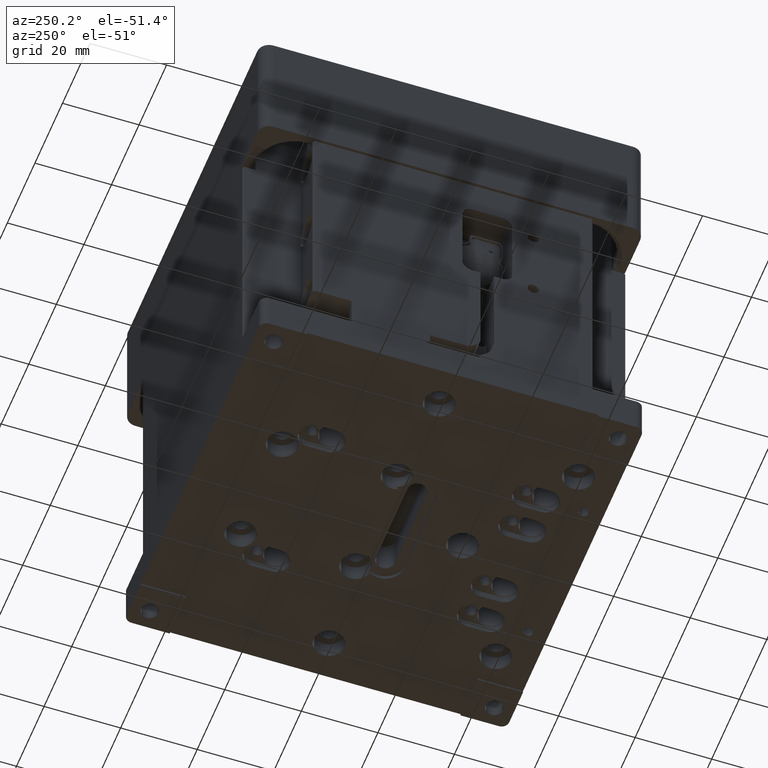
[diagram: clean part render]
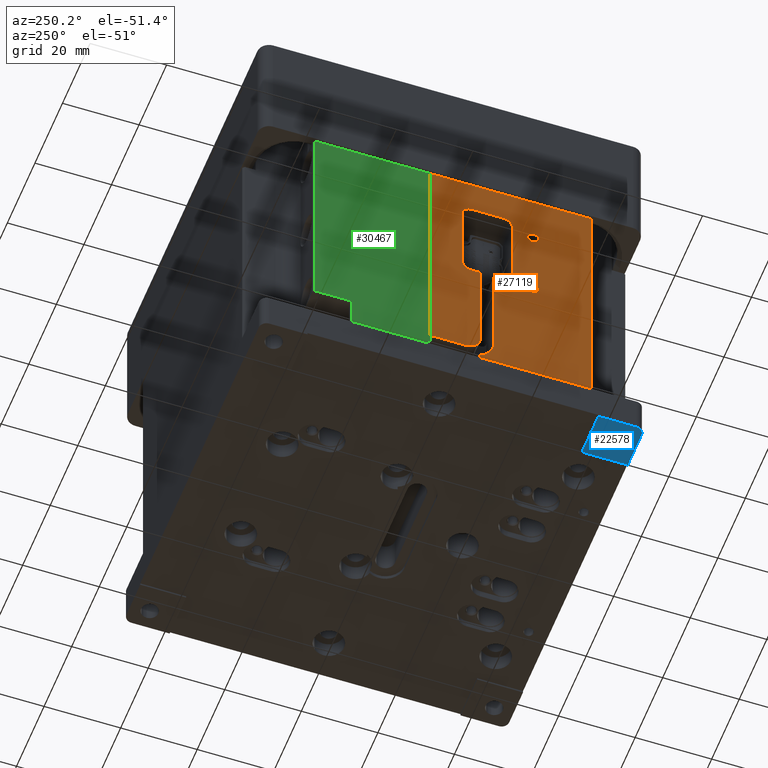
[diagram: same view with three faces highlighted in distinct colors, each labeled with its STEP entity id]
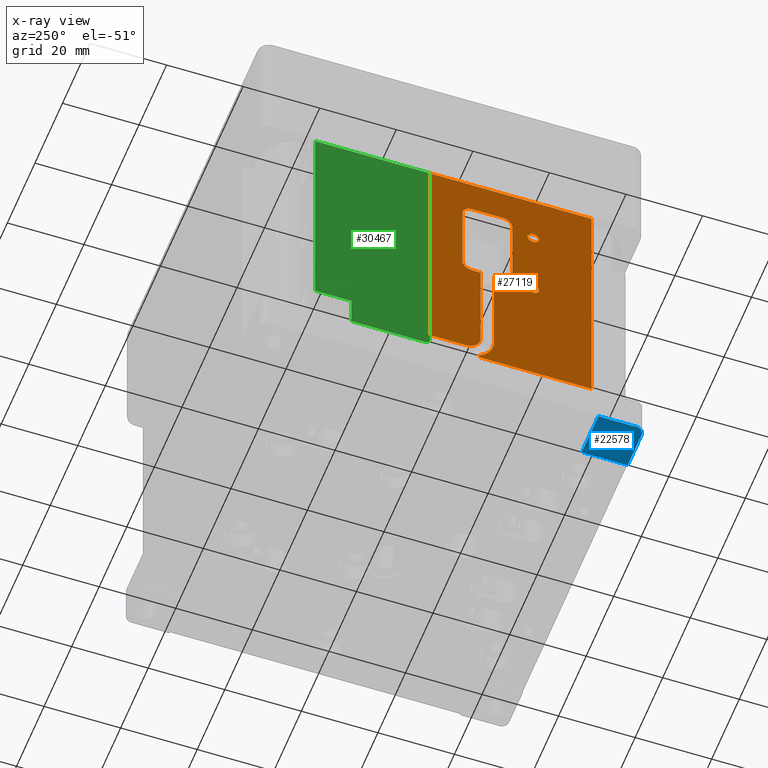
[diagram: x-ray of the same camera — body ghosted, the three highlighted faces saturated]
A machine part, auxiliary view with three faces highlighted in distinct colors.
The next image is the same camera in x-ray (body ghosted, the three faces saturated) — at least one of them is partly hidden behind the body in this view.
Their STEP definitions:

[orange] entity #27119 — the highlighted planar face has unit normal (-1, -0, 0).
#494 = DIRECTION ( 'NONE',  ( 0.000000000000000000, 1.000000000000000000, 0.000000000000000000 ) ) ;
#654 = CIRCLE ( 'NONE', #9459, 2.500000000000000444 ) ;
#704 = VERTEX_POINT ( 'NONE', #37859 ) ;
#715 = CARTESIAN_POINT ( 'NONE',  ( -49.99999999999999289, -5.000000000000000888, 55.00000000000000711 ) ) ;
#834 = EDGE_CURVE ( 'NONE', #30168, #25100, #41139, .T. ) ;
#919 = EDGE_LOOP ( 'NONE', ( #16279 ) ) ;
#1407 = CIRCLE ( 'NONE', #25077, 0.4999999999999995559 ) ;
#1605 = DIRECTION ( 'NONE',  ( -1.387778780781445922E-16, 1.000000000000000000, -0.000000000000000000 ) ) ;
#1789 = PLANE ( 'NONE',  #15205 ) ;
#1986 = CARTESIAN_POINT ( 'NONE',  ( -49.99999999999999289, -13.00000000000000000, 55.00000000000000000 ) ) ;
#1997 = FACE_BOUND ( 'NONE', #30491, .T. ) ;
#2091 = DIRECTION ( 'NONE',  ( 0.000000000000000000, -1.000000000000000000, 0.000000000000000000 ) ) ;
#2781 = CARTESIAN_POINT ( 'NONE',  ( -49.99999999999999289, -5.000000000000000000, 33.50000000000000000 ) ) ;
#2803 = EDGE_CURVE ( 'NONE', #26255, #25157, #35205, .T. ) ;
#3000 = AXIS2_PLACEMENT_3D ( 'NONE', #25051, #5981, #38009 ) ;
#3164 = EDGE_CURVE ( 'NONE', #16561, #3540, #40598, .T. ) ;
#3229 = CARTESIAN_POINT ( 'NONE',  ( -50.00000000000000000, 50.00000000000000000, 57.50000000000000000 ) ) ;
#3245 = VECTOR ( 'NONE', #40674, 1000.000000000000000 ) ;
#3540 = VERTEX_POINT ( 'NONE', #37602 ) ;
#3710 = LINE ( 'NONE', #6674, #22268 ) ;
#3747 = EDGE_CURVE ( 'NONE', #17405, #32046, #654, .T. ) ;
#3778 = DIRECTION ( 'NONE',  ( -1.387778780781445922E-16, 1.000000000000000000, -0.000000000000000000 ) ) ;
#3800 = LINE ( 'NONE', #35806, #32439 ) ;
#4286 = DIRECTION ( 'NONE',  ( 0.000000000000000000, -1.000000000000000000, 0.000000000000000000 ) ) ;
#4526 = DIRECTION ( 'NONE',  ( 0.000000000000000000, 0.000000000000000000, 1.000000000000000000 ) ) ;
#5067 = EDGE_CURVE ( 'NONE', #9309, #37967, #23037, .T. ) ;
#5263 = LINE ( 'NONE', #27740, #3245 ) ;
#5673 = CARTESIAN_POINT ( 'NONE',  ( -49.99999999999999289, -21.00000000000000355, 54.50000000000000000 ) ) ;
#5693 = ORIENTED_EDGE ( 'NONE', *, *, #24888, .T. ) ;
#5981 = DIRECTION ( 'NONE',  ( -1.000000000000000000, -1.416100796715760863E-16, -0.000000000000000000 ) ) ;
#6165 = DIRECTION ( 'NONE',  ( -0.000000000000000000, -0.000000000000000000, -1.000000000000000000 ) ) ;
#6372 = LINE ( 'NONE', #39015, #41482 ) ;
#6397 = CARTESIAN_POINT ( 'NONE',  ( -49.99999999999998579, -36.20000000000000284, 67.00000000000000000 ) ) ;
#6613 = DIRECTION ( 'NONE',  ( 1.387778780781445922E-16, -1.000000000000000000, 0.000000000000000000 ) ) ;
#6674 = CARTESIAN_POINT ( 'NONE',  ( -49.99999999999999289, -15.50000000000000000, -9.500000000000000000 ) ) ;
#7527 = DIRECTION ( 'NONE',  ( 0.000000000000000000, 0.000000000000000000, 1.000000000000000000 ) ) ;
#7560 = CARTESIAN_POINT ( 'NONE',  ( -49.99999999999999289, -7.250000000000006217, -9.500000000000000000 ) ) ;
#7655 = ORIENTED_EDGE ( 'NONE', *, *, #3747, .T. ) ;
#8023 = CARTESIAN_POINT ( 'NONE',  ( -49.99999999999999289, -5.000000000000000888, 36.00000000000001421 ) ) ;
#8158 = EDGE_CURVE ( 'NONE', #704, #11924, #6372, .T. ) ;
#8454 = ORIENTED_EDGE ( 'NONE', *, *, #37282, .T. ) ;
#9196 = ORIENTED_EDGE ( 'NONE', *, *, #26476, .T. ) ;
#9309 = VERTEX_POINT ( 'NONE', #23364 ) ;
#9459 = AXIS2_PLACEMENT_3D ( 'NONE', #8023, #40681, #2091 ) ;
#9811 = CARTESIAN_POINT ( 'NONE',  ( -50.00000000000000711, 5.999999999999998224, 67.00000000000000000 ) ) ;
#10066 = VERTEX_POINT ( 'NONE', #39345 ) ;
#10714 = DIRECTION ( 'NONE',  ( 1.000000000000000000, 1.387778780781445676E-16, 0.000000000000000000 ) ) ;
#10967 = EDGE_CURVE ( 'NONE', #11924, #35436, #26056, .T. ) ;
#11161 = DIRECTION ( 'NONE',  ( 0.000000000000000000, 0.000000000000000000, 1.000000000000000000 ) ) ;
#11340 = VERTEX_POINT ( 'NONE', #30414 ) ;
#11343 = LINE ( 'NONE', #30651, #32681 ) ;
#11553 = DIRECTION ( 'NONE',  ( 1.000000000000000000, 0.000000000000000000, 0.000000000000000000 ) ) ;
#11924 = VERTEX_POINT ( 'NONE', #40650 ) ;
#12579 = CARTESIAN_POINT ( 'NONE',  ( -49.99999999999999289, -5.000000000000001776, 57.50000000000000711 ) ) ;
#13275 = CIRCLE ( 'NONE', #40379, 1.499999999999994449 ) ;
#13553 = EDGE_CURVE ( 'NONE', #11340, #17405, #36630, .T. ) ;
#14241 = CARTESIAN_POINT ( 'NONE',  ( -49.99999999999999289, -2.500000000000001332, 36.00000000000001421 ) ) ;
#14319 = ORIENTED_EDGE ( 'NONE', *, *, #21723, .F. ) ;
#14334 = EDGE_LOOP ( 'NONE', ( #28988, #14319, #38336, #26573, #5693, #21227, #35214, #9196, #40298, #22265, #7655, #17304, #22130, #8454, #33625, #24630, #15781, #41034, #20164 ) ) ;
#14437 = EDGE_CURVE ( 'NONE', #25157, #17584, #16086, .T. ) ;
#14585 = CARTESIAN_POINT ( 'NONE',  ( -50.00000000000000000, 50.00000000000000000, 33.50000000000000000 ) ) ;
#14587 = VERTEX_POINT ( 'NONE', #5673 ) ;
#14765 = CARTESIAN_POINT ( 'NONE',  ( -49.99999999999999289, -21.00000000000000355, 53.00000000000000711 ) ) ;
#14810 = ORIENTED_EDGE ( 'NONE', *, *, #41743, .T. ) ;
#14843 = VECTOR ( 'NONE', #6613, 1000.000000000000000 ) ;
#15205 = AXIS2_PLACEMENT_3D ( 'NONE', #24864, #21264, #37412 ) ;
#15643 = EDGE_CURVE ( 'NONE', #27331, #26629, #5263, .T. ) ;
#15781 = ORIENTED_EDGE ( 'NONE', *, *, #3164, .T. ) ;
#15835 = CIRCLE ( 'NONE', #3000, 4.250000000000000000 ) ;
#15954 = LINE ( 'NONE', #3229, #14843 ) ;
#16086 = LINE ( 'NONE', #35788, #26203 ) ;
#16279 = ORIENTED_EDGE ( 'NONE', *, *, #37130, .T. ) ;
#16561 = VERTEX_POINT ( 'NONE', #41184 ) ;
#17031 = CARTESIAN_POINT ( 'NONE',  ( -49.99999999999999289, -7.250000000000007994, 7.500000000000001776 ) ) ;
#17191 = VECTOR ( 'NONE', #4526, 1000.000000000000000 ) ;
#17304 = ORIENTED_EDGE ( 'NONE', *, *, #26421, .T. ) ;
#17405 = VERTEX_POINT ( 'NONE', #2781 ) ;
#17584 = VERTEX_POINT ( 'NONE', #20330 ) ;
#17728 = CARTESIAN_POINT ( 'NONE',  ( -49.99999999999999289, -13.00000000000000000, 36.00000000000001421 ) ) ;
#17966 = AXIS2_PLACEMENT_3D ( 'NONE', #30684, #34073, #37036 ) ;
#18899 = AXIS2_PLACEMENT_3D ( 'NONE', #14765, #34068, #40209 ) ;
#19466 = DIRECTION ( 'NONE',  ( 1.387778780781445922E-16, -1.000000000000000000, 0.000000000000000000 ) ) ;
#19598 = DIRECTION ( 'NONE',  ( -0.000000000000000000, -0.000000000000000000, -1.000000000000000000 ) ) ;
#19796 = DIRECTION ( 'NONE',  ( 1.000000000000000000, 1.387778780781445676E-16, 0.000000000000000000 ) ) ;
#19952 = DIRECTION ( 'NONE',  ( 1.000000000000000000, 1.416100796715760863E-16, 0.000000000000000000 ) ) ;
#20164 = ORIENTED_EDGE ( 'NONE', *, *, #8158, .T. ) ;
#20330 = CARTESIAN_POINT ( 'NONE',  ( -49.99999999999999289, -3.000000000000008438, 3.250000000000000444 ) ) ;
#20400 = CARTESIAN_POINT ( 'NONE',  ( -49.99999999999999289, -2.500000000000002220, -9.500000000000000000 ) ) ;
#20833 = AXIS2_PLACEMENT_3D ( 'NONE', #715, #19796, #494 ) ;
#21227 = ORIENTED_EDGE ( 'NONE', *, *, #2803, .T. ) ;
#21264 = DIRECTION ( 'NONE',  ( -1.000000000000000000, -1.387778780781445922E-16, 0.000000000000000000 ) ) ;
#21714 = AXIS2_PLACEMENT_3D ( 'NONE', #1986, #21877, #28668 ) ;
#21723 = EDGE_CURVE ( 'NONE', #41635, #35436, #1407, .T. ) ;
#21877 = DIRECTION ( 'NONE',  ( 1.000000000000000000, 1.387778780781445676E-16, -0.000000000000000000 ) ) ;
#22130 = ORIENTED_EDGE ( 'NONE', *, *, #834, .T. ) ;
#22265 = ORIENTED_EDGE ( 'NONE', *, *, #13553, .T. ) ;
#22268 = VECTOR ( 'NONE', #19598, 1000.000000000000000 ) ;
#22866 = CARTESIAN_POINT ( 'NONE',  ( -50.00000000000000000, 5.999999999999997335, 93.50000000000000000 ) ) ;
#23037 = CIRCLE ( 'NONE', #21714, 2.500000000000000444 ) ;
#23364 = CARTESIAN_POINT ( 'NONE',  ( -49.99999999999999289, -12.99999999999999822, 57.50000000000000000 ) ) ;
#23625 = CARTESIAN_POINT ( 'NONE',  ( -49.99999999999999289, -21.00000000000000355, 33.00000000000000000 ) ) ;
#24630 = ORIENTED_EDGE ( 'NONE', *, *, #38303, .T. ) ;
#24764 = CARTESIAN_POINT ( 'NONE',  ( -49.99999999999999289, -15.50000000000000000, 55.00000000000000000 ) ) ;
#24864 = CARTESIAN_POINT ( 'NONE',  ( -50.00000000000000000, 50.00000000000000000, -9.500000000000000000 ) ) ;
#24888 = EDGE_CURVE ( 'NONE', #26629, #26255, #11343, .T. ) ;
#25051 = CARTESIAN_POINT ( 'NONE',  ( -49.99999999999999289, -3.000000000000008438, 7.500000000000001776 ) ) ;
#25077 = AXIS2_PLACEMENT_3D ( 'NONE', #32127, #19952, #4286 ) ;
#25100 = VERTEX_POINT ( 'NONE', #12579 ) ;
#25157 = VERTEX_POINT ( 'NONE', #35273 ) ;
#26056 = CIRCLE ( 'NONE', #17966, 7.750000000000000000 ) ;
#26203 = VECTOR ( 'NONE', #19466, 1000.000000000000000 ) ;
#26255 = VERTEX_POINT ( 'NONE', #9811 ) ;
#26373 = VERTEX_POINT ( 'NONE', #17031 ) ;
#26421 = EDGE_CURVE ( 'NONE', #32046, #30168, #36959, .T. ) ;
#26476 = EDGE_CURVE ( 'NONE', #17584, #26373, #15835, .T. ) ;
#26573 = ORIENTED_EDGE ( 'NONE', *, *, #15643, .T. ) ;
#26629 = VERTEX_POINT ( 'NONE', #6397 ) ;
#27119 = ADVANCED_FACE ( 'NONE', ( #28277, #31261, #1997 ), #1789, .T. ) ;
#27331 = VERTEX_POINT ( 'NONE', #28033 ) ;
#27523 = DIRECTION ( 'NONE',  ( -1.387778780781445922E-16, 1.000000000000000000, -0.000000000000000000 ) ) ;
#27740 = CARTESIAN_POINT ( 'NONE',  ( -49.99999999999998579, -36.19999999999999574, -9.500000000000000000 ) ) ;
#27873 = CARTESIAN_POINT ( 'NONE',  ( -49.99999999999998579, -7.101452462831541190, 0.9242424242424239766 ) ) ;
#28033 = CARTESIAN_POINT ( 'NONE',  ( -49.99999999999998579, -36.20000000000000284, 0.000000000000000000 ) ) ;
#28277 = FACE_OUTER_BOUND ( 'NONE', #14334, .T. ) ;
#28668 = DIRECTION ( 'NONE',  ( 0.000000000000000000, -1.000000000000000000, 0.000000000000000000 ) ) ;
#28965 = EDGE_CURVE ( 'NONE', #3540, #704, #35994, .T. ) ;
#28988 = ORIENTED_EDGE ( 'NONE', *, *, #10967, .T. ) ;
#29745 = AXIS2_PLACEMENT_3D ( 'NONE', #17728, #10714, #33415 ) ;
#30168 = VERTEX_POINT ( 'NONE', #38701 ) ;
#30414 = CARTESIAN_POINT ( 'NONE',  ( -49.99999999999999289, -7.250000000000006217, 33.50000000000000000 ) ) ;
#30491 = EDGE_LOOP ( 'NONE', ( #14810 ) ) ;
#30651 = CARTESIAN_POINT ( 'NONE',  ( -50.00000000000000000, 50.00000000000000000, 67.00000000000000000 ) ) ;
#30684 = CARTESIAN_POINT ( 'NONE',  ( -49.99999999999999289, -3.000000000000006217, 7.500000000000000000 ) ) ;
#30890 = LINE ( 'NONE', #7560, #33730 ) ;
#31261 = FACE_BOUND ( 'NONE', #919, .T. ) ;
#32031 = DIRECTION ( 'NONE',  ( 0.000000000000000000, -0.000000000000000000, -1.000000000000000000 ) ) ;
#32046 = VERTEX_POINT ( 'NONE', #14241 ) ;
#32106 = VECTOR ( 'NONE', #3778, 1000.000000000000000 ) ;
#32127 = CARTESIAN_POINT ( 'NONE',  ( -49.99999999999998579, -7.366062299143253611, 0.5000000000000004441 ) ) ;
#32439 = VECTOR ( 'NONE', #39414, 1000.000000000000000 ) ;
#32681 = VECTOR ( 'NONE', #1605, 1000.000000000000000 ) ;
#32818 = CARTESIAN_POINT ( 'NONE',  ( -50.00000000000000000, 50.00000000000000000, 33.50000000000000000 ) ) ;
#33415 = DIRECTION ( 'NONE',  ( 0.000000000000000000, 1.000000000000000000, 0.000000000000000000 ) ) ;
#33625 = ORIENTED_EDGE ( 'NONE', *, *, #5067, .T. ) ;
#33730 = VECTOR ( 'NONE', #11161, 1000.000000000000000 ) ;
#34068 = DIRECTION ( 'NONE',  ( 1.000000000000000000, 0.000000000000000000, 0.000000000000000000 ) ) ;
#34073 = DIRECTION ( 'NONE',  ( 1.000000000000000000, 1.416100796715760863E-16, 0.000000000000000000 ) ) ;
#34979 = EDGE_CURVE ( 'NONE', #26373, #11340, #30890, .T. ) ;
#35205 = LINE ( 'NONE', #22866, #36525 ) ;
#35214 = ORIENTED_EDGE ( 'NONE', *, *, #14437, .T. ) ;
#35273 = CARTESIAN_POINT ( 'NONE',  ( -50.00000000000000711, 5.999999999999998224, 3.250000000000002665 ) ) ;
#35436 = VERTEX_POINT ( 'NONE', #27873 ) ;
#35788 = CARTESIAN_POINT ( 'NONE',  ( -50.00000000000000000, 50.00000000000000000, 3.250000000000001332 ) ) ;
#35806 = CARTESIAN_POINT ( 'NONE',  ( -49.99999999999998579, 0.000000000000000000, 0.000000000000000000 ) ) ;
#35824 = CIRCLE ( 'NONE', #18899, 1.499999999999994449 ) ;
#35994 = LINE ( 'NONE', #32818, #32106 ) ;
#36525 = VECTOR ( 'NONE', #32031, 1000.000000000000000 ) ;
#36630 = LINE ( 'NONE', #14585, #39608 ) ;
#36842 = EDGE_CURVE ( 'NONE', #27331, #41635, #3800, .T. ) ;
#36959 = LINE ( 'NONE', #20400, #17191 ) ;
#37036 = DIRECTION ( 'NONE',  ( 0.000000000000000000, -1.000000000000000000, 0.000000000000000000 ) ) ;
#37130 = EDGE_CURVE ( 'NONE', #14587, #14587, #35824, .T. ) ;
#37282 = EDGE_CURVE ( 'NONE', #25100, #9309, #15954, .T. ) ;
#37412 = DIRECTION ( 'NONE',  ( 1.387778780781445922E-16, -1.000000000000000000, 0.000000000000000000 ) ) ;
#37602 = CARTESIAN_POINT ( 'NONE',  ( -49.99999999999999289, -12.99999999999999822, 33.50000000000000000 ) ) ;
#37859 = CARTESIAN_POINT ( 'NONE',  ( -49.99999999999999289, -10.75000000000000178, 33.50000000000000000 ) ) ;
#37967 = VERTEX_POINT ( 'NONE', #24764 ) ;
#38009 = DIRECTION ( 'NONE',  ( 0.000000000000000000, -1.000000000000000000, 0.000000000000000000 ) ) ;
#38303 = EDGE_CURVE ( 'NONE', #37967, #16561, #3710, .T. ) ;
#38336 = ORIENTED_EDGE ( 'NONE', *, *, #36842, .F. ) ;
#38701 = CARTESIAN_POINT ( 'NONE',  ( -49.99999999999999289, -2.500000000000001332, 55.00000000000000711 ) ) ;
#39015 = CARTESIAN_POINT ( 'NONE',  ( -49.99999999999999289, -10.75000000000000178, -9.500000000000000000 ) ) ;
#39126 = CARTESIAN_POINT ( 'NONE',  ( -49.99999999999998579, -7.366062299143246506, 0.000000000000000000 ) ) ;
#39345 = CARTESIAN_POINT ( 'NONE',  ( -49.99999999999999289, -21.00000000000000355, 34.49999999999999289 ) ) ;
#39414 = DIRECTION ( 'NONE',  ( 0.000000000000000000, 1.000000000000000000, 0.000000000000000000 ) ) ;
#39608 = VECTOR ( 'NONE', #27523, 1000.000000000000000 ) ;
#40209 = DIRECTION ( 'NONE',  ( 0.000000000000000000, 0.000000000000000000, 1.000000000000000000 ) ) ;
#40298 = ORIENTED_EDGE ( 'NONE', *, *, #34979, .T. ) ;
#40379 = AXIS2_PLACEMENT_3D ( 'NONE', #23625, #11553, #7527 ) ;
#40598 = CIRCLE ( 'NONE', #29745, 2.500000000000000444 ) ;
#40650 = CARTESIAN_POINT ( 'NONE',  ( -49.99999999999999289, -10.75000000000000355, 7.500000000000001776 ) ) ;
#40674 = DIRECTION ( 'NONE',  ( 0.000000000000000000, 0.000000000000000000, 1.000000000000000000 ) ) ;
#40681 = DIRECTION ( 'NONE',  ( 1.000000000000000000, 1.387778780781445676E-16, -0.000000000000000000 ) ) ;
#41034 = ORIENTED_EDGE ( 'NONE', *, *, #28965, .T. ) ;
#41139 = CIRCLE ( 'NONE', #20833, 2.500000000000000000 ) ;
#41184 = CARTESIAN_POINT ( 'NONE',  ( -49.99999999999999289, -15.50000000000000000, 36.00000000000001421 ) ) ;
#41482 = VECTOR ( 'NONE', #6165, 1000.000000000000000 ) ;
#41635 = VERTEX_POINT ( 'NONE', #39126 ) ;
#41743 = EDGE_CURVE ( 'NONE', #10066, #10066, #13275, .T. ) ;

[blue] entity #22578 — the highlighted planar face has unit normal (0, 0, -1).
#791 = ORIENTED_EDGE ( 'NONE', *, *, #36201, .F. ) ;
#1370 = CARTESIAN_POINT ( 'NONE',  ( -37.99999999999996447, -49.99999999999998579, -10.00000000000000000 ) ) ;
#1379 = DIRECTION ( 'NONE',  ( -0.000000000000000000, -0.000000000000000000, 1.000000000000000000 ) ) ;
#1659 = VERTEX_POINT ( 'NONE', #8430 ) ;
#2727 = CARTESIAN_POINT ( 'NONE',  ( -49.99999999999997868, -38.00000000000000711, -10.00000000000000000 ) ) ;
#3475 = CARTESIAN_POINT ( 'NONE',  ( 0.000000000000000000, -38.00000000000000711, -10.00000000000000000 ) ) ;
#4190 = VERTEX_POINT ( 'NONE', #32737 ) ;
#6236 = VECTOR ( 'NONE', #13189, 1000.000000000000000 ) ;
#6421 = LINE ( 'NONE', #19343, #6236 ) ;
#7647 = VECTOR ( 'NONE', #29040, 1000.000000000000000 ) ;
#8071 = EDGE_CURVE ( 'NONE', #40539, #38413, #41570, .T. ) ;
#8430 = CARTESIAN_POINT ( 'NONE',  ( -42.74999999999998579, -44.99999999999999289, -9.999999999999994671 ) ) ;
#9028 = DIRECTION ( 'NONE',  ( -1.000000000000000000, 0.000000000000000000, -0.000000000000000000 ) ) ;
#9097 = EDGE_CURVE ( 'NONE', #19886, #40539, #25507, .T. ) ;
#12312 = EDGE_LOOP ( 'NONE', ( #41037 ) ) ;
#13189 = DIRECTION ( 'NONE',  ( 1.387778780781445922E-16, -1.000000000000000000, 0.000000000000000000 ) ) ;
#13669 = DIRECTION ( 'NONE',  ( 0.000000000000000000, 0.000000000000000000, 1.000000000000000000 ) ) ;
#15478 = ORIENTED_EDGE ( 'NONE', *, *, #39504, .F. ) ;
#19343 = CARTESIAN_POINT ( 'NONE',  ( -50.00000000000000000, 50.00000000000000000, -10.00000000000000000 ) ) ;
#19511 = AXIS2_PLACEMENT_3D ( 'NONE', #20017, #13669, #29566 ) ;
#19886 = VERTEX_POINT ( 'NONE', #2727 ) ;
#20017 = CARTESIAN_POINT ( 'NONE',  ( -47.99999999999998579, -47.99999999999998579, -10.00000000000000000 ) ) ;
#20644 = CARTESIAN_POINT ( 'NONE',  ( -44.99999999999998579, -44.99999999999999289, -9.999999999999994671 ) ) ;
#20852 = CARTESIAN_POINT ( 'NONE',  ( -49.99999999999998579, -49.99999999999998579, -10.00000000000000000 ) ) ;
#22044 = VECTOR ( 'NONE', #27032, 1000.000000000000000 ) ;
#22239 = CARTESIAN_POINT ( 'NONE',  ( -37.99999999999996447, 0.000000000000000000, -10.00000000000000000 ) ) ;
#22578 = ADVANCED_FACE ( 'NONE', ( #34897, #31518 ), #34694, .T. ) ;
#23098 = AXIS2_PLACEMENT_3D ( 'NONE', #40854, #25129, #9028 ) ;
#23257 = EDGE_CURVE ( 'NONE', #19886, #32469, #6421, .T. ) ;
#25129 = DIRECTION ( 'NONE',  ( 0.000000000000000000, 0.000000000000000000, -1.000000000000000000 ) ) ;
#25507 = LINE ( 'NONE', #3475, #41510 ) ;
#26999 = CIRCLE ( 'NONE', #31063, 2.250000000000001776 ) ;
#27032 = DIRECTION ( 'NONE',  ( 1.000000000000000000, 0.000000000000000000, 0.000000000000000000 ) ) ;
#27466 = EDGE_LOOP ( 'NONE', ( #40097, #34356, #15478, #791, #30762 ) ) ;
#29040 = DIRECTION ( 'NONE',  ( -0.000000000000000000, -1.000000000000000000, -0.000000000000000000 ) ) ;
#29566 = DIRECTION ( 'NONE',  ( 1.000000000000000000, 0.000000000000000000, 0.000000000000000000 ) ) ;
#30207 = LINE ( 'NONE', #20852, #22044 ) ;
#30636 = DIRECTION ( 'NONE',  ( 1.000000000000000000, 0.000000000000000000, 0.000000000000000000 ) ) ;
#30762 = ORIENTED_EDGE ( 'NONE', *, *, #23257, .F. ) ;
#31063 = AXIS2_PLACEMENT_3D ( 'NONE', #20644, #1379, #30636 ) ;
#31518 = FACE_BOUND ( 'NONE', #12312, .T. ) ;
#32377 = CIRCLE ( 'NONE', #19511, 2.000000000000001776 ) ;
#32469 = VERTEX_POINT ( 'NONE', #38972 ) ;
#32737 = CARTESIAN_POINT ( 'NONE',  ( -47.99999999999998579, -49.99999999999998579, -10.00000000000000000 ) ) ;
#33392 = CARTESIAN_POINT ( 'NONE',  ( -37.99999999999996447, -38.00000000000000711, -10.00000000000000000 ) ) ;
#34356 = ORIENTED_EDGE ( 'NONE', *, *, #8071, .T. ) ;
#34694 = PLANE ( 'NONE',  #23098 ) ;
#34897 = FACE_OUTER_BOUND ( 'NONE', #27466, .T. ) ;
#36201 = EDGE_CURVE ( 'NONE', #32469, #4190, #32377, .T. ) ;
#36341 = EDGE_CURVE ( 'NONE', #1659, #1659, #26999, .T. ) ;
#38413 = VERTEX_POINT ( 'NONE', #1370 ) ;
#38972 = CARTESIAN_POINT ( 'NONE',  ( -49.99999999999998579, -47.99999999999997158, -10.00000000000000000 ) ) ;
#39083 = DIRECTION ( 'NONE',  ( 1.000000000000000000, -0.000000000000000000, 0.000000000000000000 ) ) ;
#39504 = EDGE_CURVE ( 'NONE', #4190, #38413, #30207, .T. ) ;
#40097 = ORIENTED_EDGE ( 'NONE', *, *, #9097, .T. ) ;
#40539 = VERTEX_POINT ( 'NONE', #33392 ) ;
#40854 = CARTESIAN_POINT ( 'NONE',  ( 0.000000000000000000, 0.000000000000000000, -10.00000000000000000 ) ) ;
#41037 = ORIENTED_EDGE ( 'NONE', *, *, #36341, .T. ) ;
#41510 = VECTOR ( 'NONE', #39083, 1000.000000000000000 ) ;
#41570 = LINE ( 'NONE', #22239, #7647 ) ;

[green] entity #30467 — the highlighted planar face has unit normal (1, 0, -0).
#254 = VECTOR ( 'NONE', #33508, 1000.000000000000000 ) ;
#840 = DIRECTION ( 'NONE',  ( -0.000000000000000000, -1.000000000000000000, -0.000000000000000000 ) ) ;
#2907 = ORIENTED_EDGE ( 'NONE', *, *, #10721, .F. ) ;
#4107 = EDGE_LOOP ( 'NONE', ( #2907, #39765, #39775, #28714, #6643, #41178, #28160 ) ) ;
#4440 = CARTESIAN_POINT ( 'NONE',  ( -50.00000000000000711, 7.000000000000003553, 0.000000000000000000 ) ) ;
#4675 = EDGE_CURVE ( 'NONE', #33739, #37756, #35449, .T. ) ;
#5046 = VECTOR ( 'NONE', #12052, 1000.000000000000114 ) ;
#6058 = CARTESIAN_POINT ( 'NONE',  ( -50.00000000000000711, 5.999999999999998224, 67.00000000000000000 ) ) ;
#6407 = CARTESIAN_POINT ( 'NONE',  ( -50.00000000000000000, 35.99999999999999289, 202.7520022699813182 ) ) ;
#6643 = ORIENTED_EDGE ( 'NONE', *, *, #29827, .T. ) ;
#8979 = DIRECTION ( 'NONE',  ( 0.000000000000000000, -0.000000000000000000, 1.000000000000000000 ) ) ;
#10721 = EDGE_CURVE ( 'NONE', #25955, #20983, #15452, .T. ) ;
#11738 = VERTEX_POINT ( 'NONE', #12886 ) ;
#12017 = EDGE_CURVE ( 'NONE', #21630, #33739, #17541, .T. ) ;
#12052 = DIRECTION ( 'NONE',  ( 0.000000000000000000, 0.7071067811865302533, -0.7071067811865646702 ) ) ;
#12140 = DIRECTION ( 'NONE',  ( -0.000000000000000000, 0.000000000000000000, -1.000000000000000000 ) ) ;
#12886 = CARTESIAN_POINT ( 'NONE',  ( -50.00000000000000000, 26.50000000000000355, 0.000000000000000000 ) ) ;
#13109 = VERTEX_POINT ( 'NONE', #16132 ) ;
#14203 = LINE ( 'NONE', #40292, #35799 ) ;
#14575 = CARTESIAN_POINT ( 'NONE',  ( -50.00000000000000000, 0.000000000000000000, 67.00000000000000000 ) ) ;
#14708 = DIRECTION ( 'NONE',  ( 1.000000000000000000, 0.000000000000000000, -0.000000000000000000 ) ) ;
#15452 = LINE ( 'NONE', #41105, #5046 ) ;
#15591 = VECTOR ( 'NONE', #840, 1000.000000000000000 ) ;
#16132 = CARTESIAN_POINT ( 'NONE',  ( -50.00000000000000711, 26.50000000000000711, 8.000000000000001776 ) ) ;
#16656 = EDGE_CURVE ( 'NONE', #11738, #13109, #14203, .T. ) ;
#17541 = LINE ( 'NONE', #14575, #19392 ) ;
#18099 = CARTESIAN_POINT ( 'NONE',  ( -50.00000000000000000, 6.000000000000000000, 202.7520022699813182 ) ) ;
#19392 = VECTOR ( 'NONE', #37680, 1000.000000000000000 ) ;
#19493 = CARTESIAN_POINT ( 'NONE',  ( -50.00000000000000711, 35.99999999999999289, 7.999999999999965361 ) ) ;
#20983 = VERTEX_POINT ( 'NONE', #4440 ) ;
#21255 = FACE_OUTER_BOUND ( 'NONE', #4107, .T. ) ;
#21630 = VERTEX_POINT ( 'NONE', #6058 ) ;
#23010 = CARTESIAN_POINT ( 'NONE',  ( -50.00000000000000711, 35.99999999999999289, 66.99999999999995737 ) ) ;
#25955 = VERTEX_POINT ( 'NONE', #36415 ) ;
#26913 = CARTESIAN_POINT ( 'NONE',  ( -50.00000000000000000, 0.000000000000000000, 8.000000000000000000 ) ) ;
#27069 = EDGE_CURVE ( 'NONE', #25955, #21630, #27876, .T. ) ;
#27876 = LINE ( 'NONE', #18099, #33478 ) ;
#28160 = ORIENTED_EDGE ( 'NONE', *, *, #28557, .F. ) ;
#28557 = EDGE_CURVE ( 'NONE', #20983, #11738, #33719, .T. ) ;
#28714 = ORIENTED_EDGE ( 'NONE', *, *, #4675, .T. ) ;
#29827 = EDGE_CURVE ( 'NONE', #37756, #13109, #32642, .T. ) ;
#30467 = ADVANCED_FACE ( 'NONE', ( #21255 ), #34213, .F. ) ;
#30826 = CARTESIAN_POINT ( 'NONE',  ( -50.00000000000000000, 36.50000000000000711, 202.7520022699813182 ) ) ;
#31225 = VECTOR ( 'NONE', #39882, 1000.000000000000000 ) ;
#32642 = LINE ( 'NONE', #26913, #15591 ) ;
#33478 = VECTOR ( 'NONE', #8979, 1000.000000000000000 ) ;
#33508 = DIRECTION ( 'NONE',  ( 0.000000000000000000, 1.000000000000000000, 0.000000000000000000 ) ) ;
#33719 = LINE ( 'NONE', #36457, #254 ) ;
#33739 = VERTEX_POINT ( 'NONE', #23010 ) ;
#34213 = PLANE ( 'NONE',  #39950 ) ;
#35449 = LINE ( 'NONE', #6407, #31225 ) ;
#35799 = VECTOR ( 'NONE', #36682, 1000.000000000000000 ) ;
#36415 = CARTESIAN_POINT ( 'NONE',  ( -50.00000000000000711, 6.000000000000009770, 1.000000000000009770 ) ) ;
#36457 = CARTESIAN_POINT ( 'NONE',  ( -50.00000000000000000, 36.50000000000000711, 0.000000000000000000 ) ) ;
#36682 = DIRECTION ( 'NONE',  ( 0.000000000000000000, -0.000000000000000000, 1.000000000000000000 ) ) ;
#37680 = DIRECTION ( 'NONE',  ( 0.000000000000000000, 1.000000000000000000, 0.000000000000000000 ) ) ;
#37756 = VERTEX_POINT ( 'NONE', #19493 ) ;
#39765 = ORIENTED_EDGE ( 'NONE', *, *, #27069, .T. ) ;
#39775 = ORIENTED_EDGE ( 'NONE', *, *, #12017, .T. ) ;
#39882 = DIRECTION ( 'NONE',  ( 0.000000000000000000, -0.000000000000000000, -1.000000000000000000 ) ) ;
#39950 = AXIS2_PLACEMENT_3D ( 'NONE', #30826, #14708, #12140 ) ;
#40292 = CARTESIAN_POINT ( 'NONE',  ( -50.00000000000000000, 26.50000000000000355, 202.7520022699813182 ) ) ;
#41105 = CARTESIAN_POINT ( 'NONE',  ( -50.00000000000000000, 5.999999999999998224, 1.000000000000056399 ) ) ;
#41178 = ORIENTED_EDGE ( 'NONE', *, *, #16656, .F. ) ;